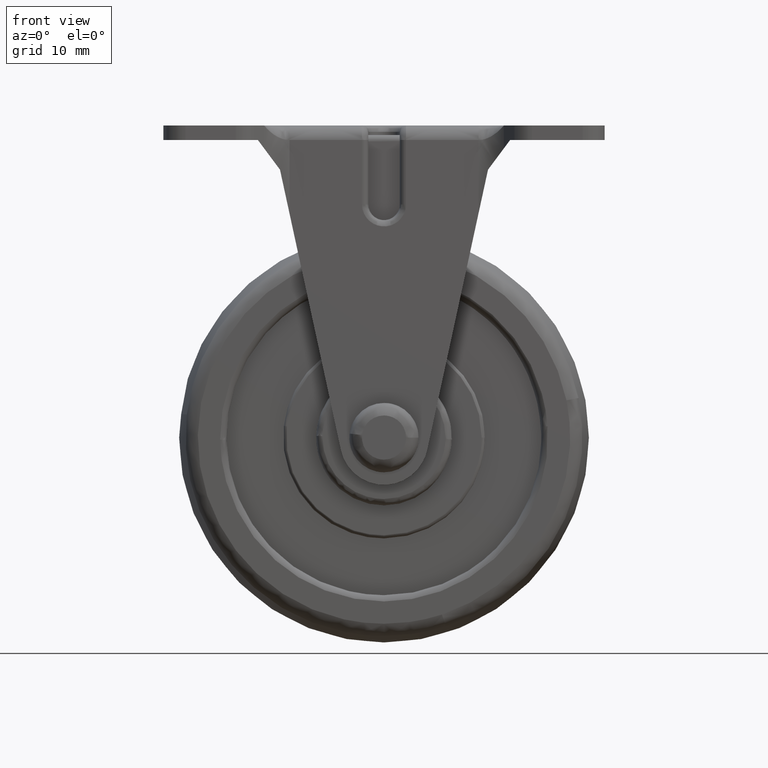
[diagram: clean part render]
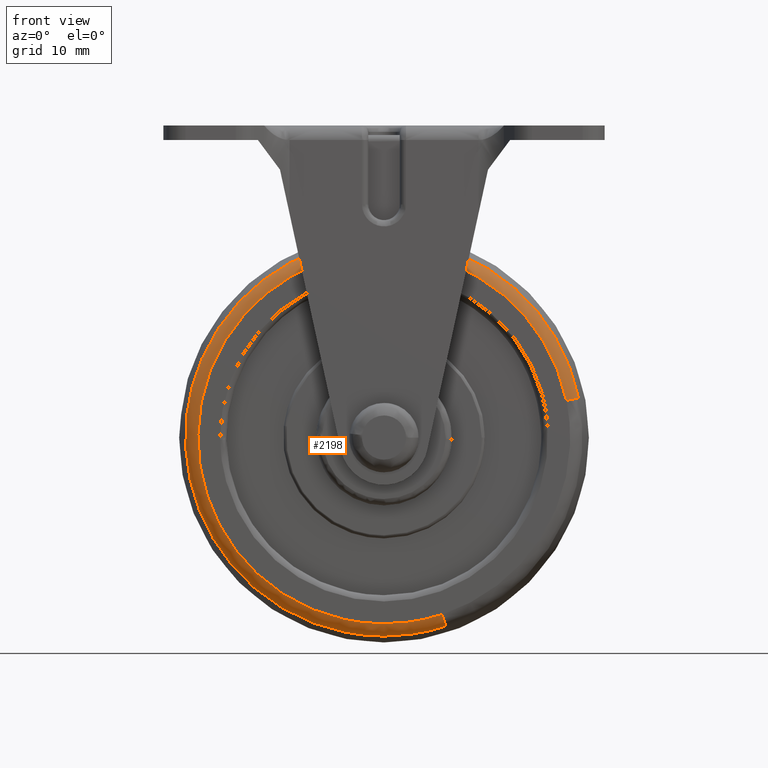
[diagram: same view with one face highlighted and labeled with its STEP entity id]
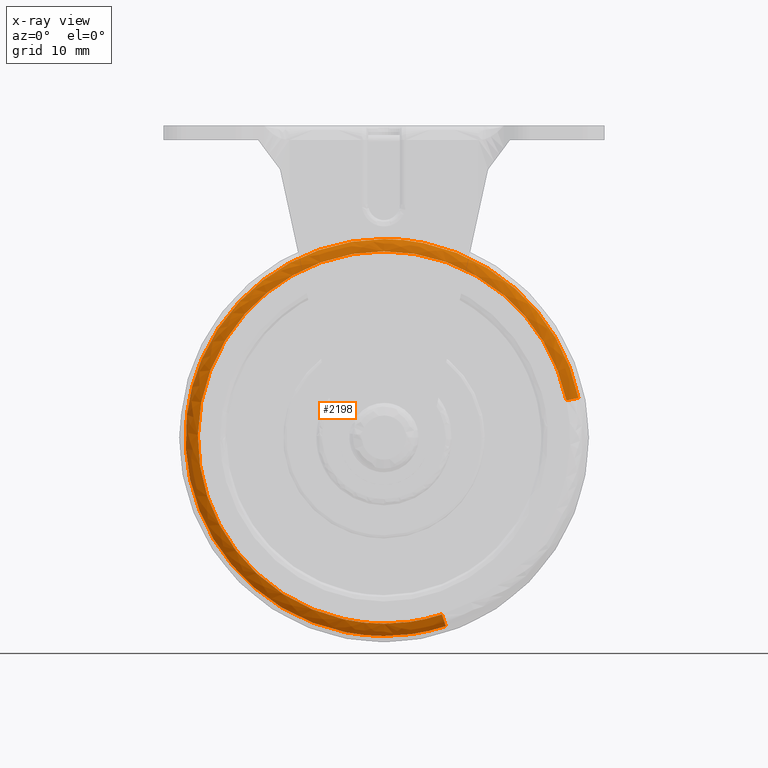
[diagram: x-ray of the same camera — body ghosted, the highlighted face saturated]
A machine part, front view. The second image highlights one B-rep face of the part: STEP entity #2198.
The next image is the same camera in x-ray: the body ghosted, the highlighted face saturated — about 0% of this face is hidden behind the body in this view.
In plain terms, the highlighted face is a freeform B-spline surface patch.
Its self-contained STEP definition (entity closure, byte-faithful):
#1987=CARTESIAN_POINT('',(9.201187041509245,-10.499999999999760,-28.067433027712870));
#1988=VERTEX_POINT('',#1987);
#1989=CARTESIAN_POINT('',(28.942115862249679,-10.499999999999771,5.898861653911524));
#1990=VERTEX_POINT('',#1989);
#2006=CARTESIAN_POINT('',(9.808425974833607,-8.947369585069662,-29.919763386978222));
#2007=VERTEX_POINT('',#2006);
#2008=CARTESIAN_POINT('',(9.808425974833607,-8.947369585069662,-29.919763386978222));
#2009=CARTESIAN_POINT('',(9.697424990853367,-10.500000170717509,-29.581164391827450));
#2010=CARTESIAN_POINT('',(9.201187041509245,-10.499999999999764,-28.067433027712877));
#2018=(BOUNDED_CURVE()B_SPLINE_CURVE(2,(#2008,#2009,#2010),.UNSPECIFIED.,.F.,.U.)B_SPLINE_CURVE_WITH_KNOTS((3,3),(-1.689654522021949,-0.296972576601535),.UNSPECIFIED.)CURVE()GEOMETRIC_REPRESENTATION_ITEM()RATIONAL_B_SPLINE_CURVE((0.855880380795568,0.670874198814498,0.859467784845968))REPRESENTATION_ITEM(''));
#2019=EDGE_CURVE('',#2007,#1988,#2018,.T.);
#2021=CARTESIAN_POINT('',(30.852173017537851,-8.947359003391426,6.288161557330739));
#2022=VERTEX_POINT('',#2021);
#2038=CARTESIAN_POINT('',(30.852173017537854,-8.947359003391428,6.288161557330739));
#2039=CARTESIAN_POINT('',(30.503028339720320,-10.499999999560963,6.217000341563873));
#2040=CARTESIAN_POINT('',(28.942115862249679,-10.499999999999766,5.898861653911524));
#2048=(BOUNDED_CURVE()B_SPLINE_CURVE(2,(#2038,#2039,#2040),.UNSPECIFIED.,.F.,.U.)B_SPLINE_CURVE_WITH_KNOTS((3,3),(-1.689660460402944,-0.296972570115232),.UNSPECIFIED.)CURVE()GEOMETRIC_REPRESENTATION_ITEM()RATIONAL_B_SPLINE_CURVE((0.894444952498107,0.701100560493369,0.898192345216401))REPRESENTATION_ITEM(''));
#2049=EDGE_CURVE('',#2022,#1990,#2048,.T.);
#2054=CARTESIAN_POINT('',(30.875563143397486,-8.826332141147390,6.292928835479655));
#2055=CARTESIAN_POINT('',(24.582634307917832,-8.826332141147390,37.168491978877157));
#2056=CARTESIAN_POINT('',(-6.292928835479655,-8.826332141147390,30.875563143397486));
#2057=CARTESIAN_POINT('',(-37.168491978877157,-8.826332141147390,24.582634307917843));
#2058=CARTESIAN_POINT('',(-30.875563143397486,-8.826332141147390,-6.292928835479652));
#2059=CARTESIAN_POINT('',(-24.582634307917843,-8.826332141147390,-37.168491978877157));
#2060=CARTESIAN_POINT('',(6.292928835479649,-8.826332141147390,-30.875563143397486));
#2061=CARTESIAN_POINT('',(8.081421047363932,-8.826332141147390,-30.511040101018445));
#2062=CARTESIAN_POINT('',(9.815861819169509,-8.826332141147388,-29.942448288296450));
#2063=CARTESIAN_POINT('',(30.587002708308606,-10.607010972610755,6.234115648030548));
#2064=CARTESIAN_POINT('',(24.352887060278057,-10.607010972610755,36.821118356339127));
#2065=CARTESIAN_POINT('',(-6.234115648030545,-10.607010972610755,30.587002708308606));
#2066=CARTESIAN_POINT('',(-36.821118356339127,-10.607010972610755,24.352887060278057));
#2067=CARTESIAN_POINT('',(-30.587002708308606,-10.607010972610755,-6.234115648030545));
#2068=CARTESIAN_POINT('',(-24.352887060278057,-10.607010972610755,-36.821118356339127));
#2069=CARTESIAN_POINT('',(6.234115648030540,-10.607010972610755,-30.587002708308606));
#2070=CARTESIAN_POINT('',(8.005892761038162,-10.607010972610755,-30.225886467846678));
#2071=CARTESIAN_POINT('',(9.724123594212866,-10.607010972610757,-29.662608666730073));
#2072=CARTESIAN_POINT('',(28.821829643199724,-10.496228989797473,5.874345417138060));
#2073=CARTESIAN_POINT('',(22.947484226061661,-10.496228989797473,34.696175060337772));
#2074=CARTESIAN_POINT('',(-5.874345417138058,-10.496228989797473,28.821829643199724));
#2075=CARTESIAN_POINT('',(-34.696175060337772,-10.496228989797473,22.947484226061661));
#2076=CARTESIAN_POINT('',(-28.821829643199724,-10.496228989797473,-5.874345417138056));
#2077=CARTESIAN_POINT('',(-22.947484226061661,-10.496228989797473,-34.696175060337772));
#2078=CARTESIAN_POINT('',(5.874345417138054,-10.496228989797473,-28.821829643199724));
#2079=CARTESIAN_POINT('',(7.543873438690636,-10.496228989797475,-28.481553387195103));
#2080=CARTESIAN_POINT('',(9.162945331210597,-10.496228989797473,-27.950782295290466));
#2088=(BOUNDED_SURFACE()B_SPLINE_SURFACE(2,2,((#2054,#2063,#2072),(#2055,#2064,#2073),(#2056,#2065,#2074),(#2057,#2066,#2075),(#2058,#2067,#2076),(#2059,#2068,#2077),(#2060,#2069,#2078),(#2061,#2070,#2079),(#2062,#2071,#2080)),.UNSPECIFIED.,.F.,.F.,.U.)B_SPLINE_SURFACE_WITH_KNOTS((3,2,2,2,3),(3,3),(0.0,52.208036153032630,104.416072306065300,156.624108459097900,160.800750480024900),(0.0,3.076046941443154),.UNSPECIFIED.)GEOMETRIC_REPRESENTATION_ITEM()RATIONAL_B_SPLINE_SURFACE(((0.914735724742204,0.680623239618688,0.918856191940046),(0.646815833958803,0.481273308167531,0.649729444256055),(0.914735724742204,0.680623239618688,0.918856191940046),(0.646815833958803,0.481273308167531,0.649729444256055),(0.914735724742204,0.680623239618688,0.918856191940046),(0.646815833958803,0.481273308167531,0.649729444256055),(0.914735724742204,0.680623239618688,0.918856191940046),(0.893302137950927,0.664675248429606,0.897326056616864),(0.875297924330832,0.651278935298456,0.879240742226745)))REPRESENTATION_ITEM('')SURFACE());
#2089=CARTESIAN_POINT('',(0.0,-10.499999999999760,-29.537140000000001));
#2090=VERTEX_POINT('',#2089);
#2091=CARTESIAN_POINT('',(0.0,-10.499999999999760,-29.537140000000001));
#2092=CARTESIAN_POINT('',(4.717971777294071,-10.499999999999758,-29.537140000000001));
#2093=CARTESIAN_POINT('',(9.201187041509243,-10.499999999999764,-28.067433027712873));
#2101=(BOUNDED_CURVE()B_SPLINE_CURVE(2,(#2091,#2092,#2093),.UNSPECIFIED.,.F.,.U.)B_SPLINE_CURVE_WITH_KNOTS((3,3),(0.0,0.052968606021395),.UNSPECIFIED.)CURVE()GEOMETRIC_REPRESENTATION_ITEM()RATIONAL_B_SPLINE_CURVE((1.0,0.937943417945328,0.902183241057762))REPRESENTATION_ITEM(''));
#2102=EDGE_CURVE('',#2090,#1988,#2101,.T.);
#2103=ORIENTED_EDGE('',*,*,#2102,.F.);
#2104=CARTESIAN_POINT('',(0.0,-10.499999999999760,29.537140000000001));
#2105=VERTEX_POINT('',#2104);
#2106=CARTESIAN_POINT('',(0.0,-10.499999999999760,29.537140000000001));
#2107=CARTESIAN_POINT('',(-29.537140000000004,-10.499999999999760,29.537140000000004));
#2108=CARTESIAN_POINT('',(-29.537140000000001,-10.499999999999760,1.211545E-015));
#2109=CARTESIAN_POINT('',(-29.537140000000004,-10.499999999999760,-29.537140000000004));
#2110=CARTESIAN_POINT('',(0.0,-10.499999999999760,-29.537140000000001));
#2118=(BOUNDED_CURVE()B_SPLINE_CURVE(2,(#2106,#2107,#2108,#2109,#2110),.UNSPECIFIED.,.F.,.U.)B_SPLINE_CURVE_WITH_KNOTS((3,2,3),(0.500000000000000,0.750000000000000,1.0),.UNSPECIFIED.)CURVE()GEOMETRIC_REPRESENTATION_ITEM()RATIONAL_B_SPLINE_CURVE((1.0,0.707106781186547,1.0,0.707106781186547,1.0))REPRESENTATION_ITEM(''));
#2119=EDGE_CURVE('',#2105,#2090,#2118,.T.);
#2120=ORIENTED_EDGE('',*,*,#2119,.F.);
#2121=CARTESIAN_POINT('',(28.942115862249679,-10.499999999999766,5.898861653911524));
#2122=CARTESIAN_POINT('',(24.124260306278792,-10.499999999999760,29.537139999999994));
#2123=CARTESIAN_POINT('',(0.0,-10.499999999999760,29.537140000000001));
#2131=(BOUNDED_CURVE()B_SPLINE_CURVE(2,(#2121,#2122,#2123),.UNSPECIFIED.,.F.,.U.)B_SPLINE_CURVE_WITH_KNOTS((3,3),(0.284232961491064,0.500000000000000),.UNSPECIFIED.)CURVE()GEOMETRIC_REPRESENTATION_ITEM()RATIONAL_B_SPLINE_CURVE((0.930770871027216,0.747213190309087,1.0))REPRESENTATION_ITEM(''));
#2132=EDGE_CURVE('',#1990,#2105,#2131,.T.);
#2133=ORIENTED_EDGE('',*,*,#2132,.F.);
#2134=ORIENTED_EDGE('',*,*,#2049,.F.);
#2135=CARTESIAN_POINT('',(0.0,-8.947351655797672,31.486470709043729));
#2136=VERTEX_POINT('',#2135);
#2137=CARTESIAN_POINT('',(30.852173017537858,-8.947359003391426,6.288161557330739));
#2138=CARTESIAN_POINT('',(25.716361636839114,-8.947351655797672,31.486470709043733));
#2139=CARTESIAN_POINT('',(0.0,-8.947351655797672,31.486470709043729));
#2147=(BOUNDED_CURVE()B_SPLINE_CURVE(2,(#2137,#2138,#2139),.UNSPECIFIED.,.F.,.U.)B_SPLINE_CURVE_WITH_KNOTS((3,3),(0.284232948269317,0.500000000000000),.UNSPECIFIED.)CURVE()GEOMETRIC_REPRESENTATION_ITEM()RATIONAL_B_SPLINE_CURVE((0.930770893523269,0.747213174818846,1.0))REPRESENTATION_ITEM(''));
#2148=EDGE_CURVE('',#2022,#2136,#2147,.T.);
#2149=ORIENTED_EDGE('',*,*,#2148,.T.);
#2150=CARTESIAN_POINT('',(-31.275877054222850,-8.947368700235634,3.635533780612191));
#2151=VERTEX_POINT('',#2150);
#2152=CARTESIAN_POINT('',(0.0,-8.947351655797672,31.486470709043729));
#2153=CARTESIAN_POINT('',(-28.038461442557708,-8.947360178016652,31.486468579418702));
#2154=CARTESIAN_POINT('',(-31.275877054222853,-8.947368700235634,3.635533780612191));
#2162=(BOUNDED_CURVE()B_SPLINE_CURVE(2,(#2152,#2153,#2154),.UNSPECIFIED.,.F.,.U.)B_SPLINE_CURVE_WITH_KNOTS((3,3),(0.500000000000000,0.730000145176667),.UNSPECIFIED.)CURVE()GEOMETRIC_REPRESENTATION_ITEM()RATIONAL_B_SPLINE_CURVE((1.0,0.730538068606579,0.956886403933733))REPRESENTATION_ITEM(''));
#2163=EDGE_CURVE('',#2136,#2151,#2162,.T.);
#2164=ORIENTED_EDGE('',*,*,#2163,.T.);
#2165=CARTESIAN_POINT('',(0.0,-8.947370412398071,-31.486466404424799));
#2166=VERTEX_POINT('',#2165);
#2167=CARTESIAN_POINT('',(-31.275877054222853,-8.947368700235634,3.635533780612191));
#2168=CARTESIAN_POINT('',(-31.486466784659083,-8.947368744394128,1.823866159143446));
#2169=CARTESIAN_POINT('',(-31.486466773354930,-8.947368793982973,0.000000042884754));
#2170=CARTESIAN_POINT('',(-31.486466578204652,-8.947369650064191,-31.486466384224485));
#2171=CARTESIAN_POINT('',(0.0,-8.947370412398071,-31.486466404424799));
#2179=(BOUNDED_CURVE()B_SPLINE_CURVE(2,(#2167,#2168,#2169,#2170,#2171),.UNSPECIFIED.,.F.,.U.)B_SPLINE_CURVE_WITH_KNOTS((3,2,3),(0.730000145176667,0.750000000000000,1.0),.UNSPECIFIED.)CURVE()GEOMETRIC_REPRESENTATION_ITEM()RATIONAL_B_SPLINE_CURVE((0.956886403933733,0.976568712579969,1.0,0.707106781186548,1.0))REPRESENTATION_ITEM(''));
#2180=EDGE_CURVE('',#2151,#2166,#2179,.T.);
#2181=ORIENTED_EDGE('',*,*,#2180,.T.);
#2182=CARTESIAN_POINT('',(0.0,-8.947370412398071,-31.486466404424799));
#2183=CARTESIAN_POINT('',(5.029337712449757,-8.947370232056272,-31.486465657545949));
#2184=CARTESIAN_POINT('',(9.808425974833607,-8.947369585069662,-29.919763386978222));
#2192=(BOUNDED_CURVE()B_SPLINE_CURVE(2,(#2182,#2183,#2184),.UNSPECIFIED.,.F.,.U.)B_SPLINE_CURVE_WITH_KNOTS((3,3),(0.0,0.052968605850543),.UNSPECIFIED.)CURVE()GEOMETRIC_REPRESENTATION_ITEM()RATIONAL_B_SPLINE_CURVE((1.0,0.937943418145494,0.902183241288454))REPRESENTATION_ITEM(''));
#2193=EDGE_CURVE('',#2166,#2007,#2192,.T.);
#2194=ORIENTED_EDGE('',*,*,#2193,.T.);
#2195=ORIENTED_EDGE('',*,*,#2019,.T.);
#2196=EDGE_LOOP('',(#2103,#2120,#2133,#2134,#2149,#2164,#2181,#2194,#2195));
#2197=FACE_OUTER_BOUND('',#2196,.T.);
#2198=ADVANCED_FACE('',(#2197),#2088,.T.);